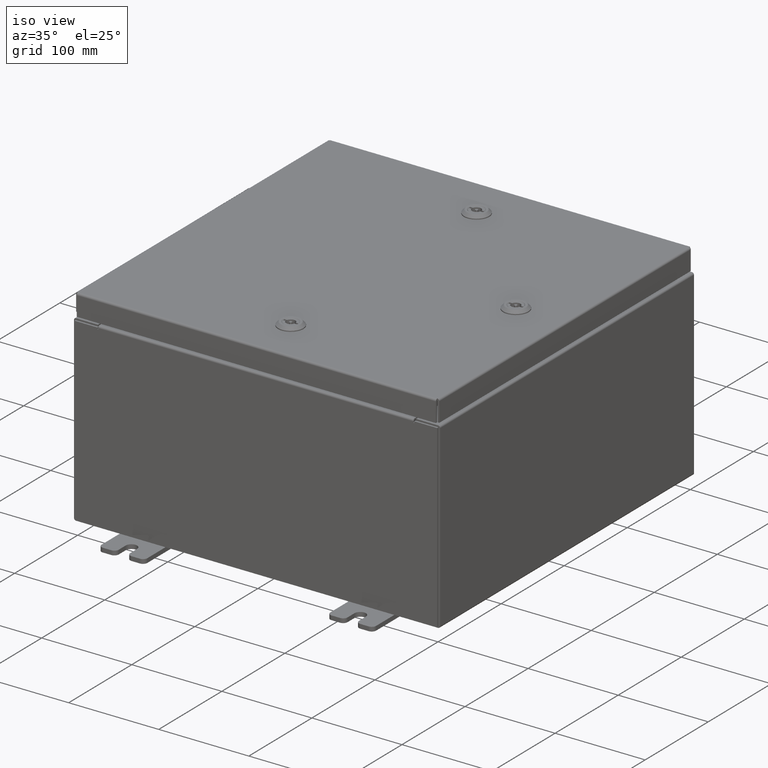
[diagram: clean part render]
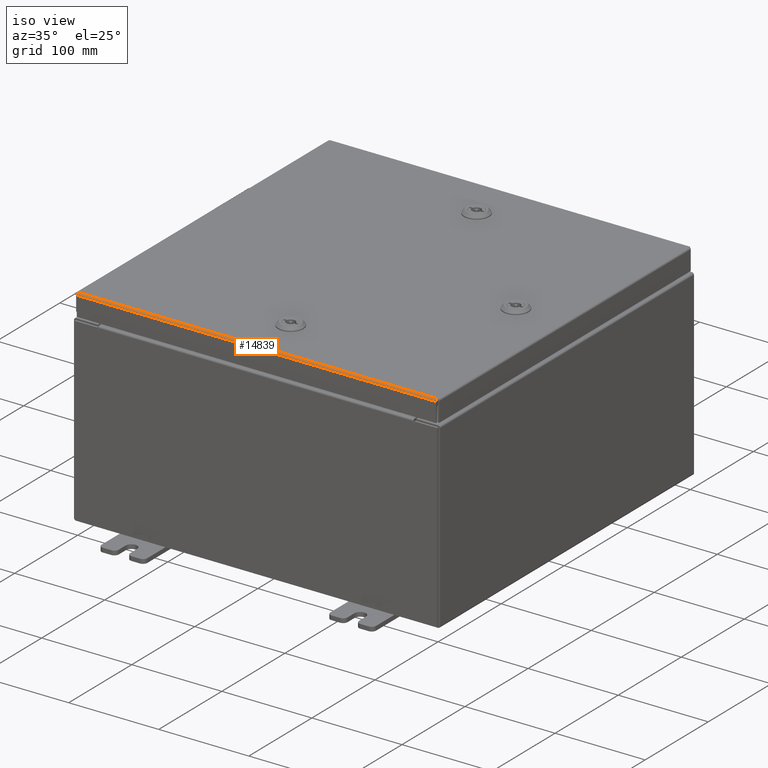
[diagram: same view with one face highlighted and labeled with its STEP entity id]
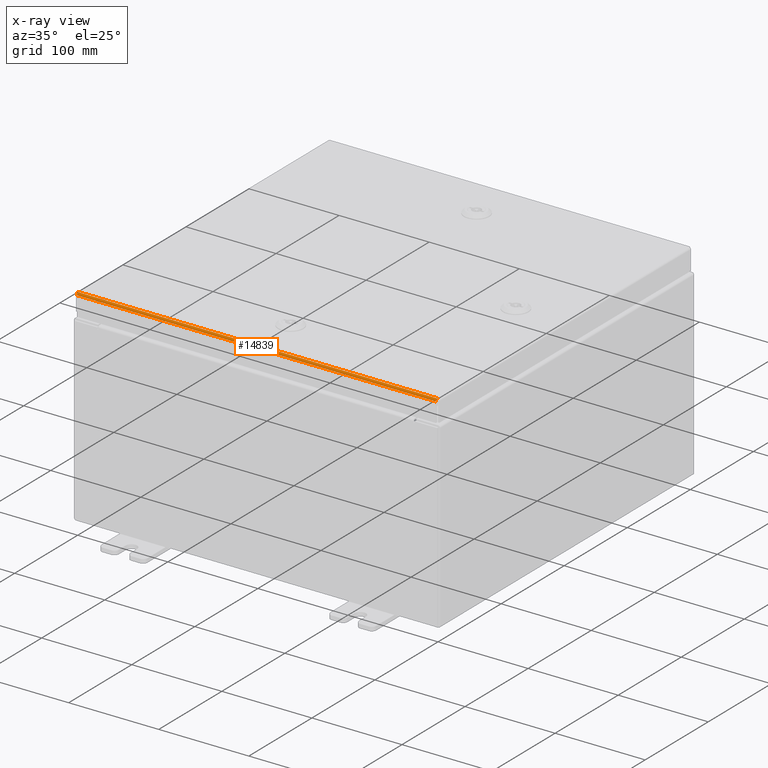
[diagram: x-ray of the same camera — body ghosted, the highlighted face saturated]
A machine part, iso view. The second image highlights one B-rep face of the part: STEP entity #14839.
The next image is the same camera in x-ray: the body ghosted, the highlighted face saturated — about 0% of this face is hidden behind the body in this view.
In plain terms, the highlighted cylindrical surface (edge-blend (fillet) strip) has radius 2.2276 mm, axis along (-1, 0, 0).
Its self-contained STEP definition (entity closure, byte-faithful):
#269 = DIRECTION ( 'NONE',  ( -1.000000000000000000, 0.0000000000000000000, 0.0000000000000000000 ) ) ;
#353 = CARTESIAN_POINT ( 'NONE',  ( 7.849704822031355900, -7.861279903154991400, -1.719743664956860300E-016 ) ) ;
#763 = CARTESIAN_POINT ( 'NONE',  ( 7.849038576250846300, -7.926431066258668800, -0.04353261542147215300 ) ) ;
#4631 = CARTESIAN_POINT ( 'NONE',  ( 7.849800000000000100, -7.849800000000000100, 0.0000000000000000000 ) ) ;
#5249 = DIRECTION ( 'NONE',  ( 1.000000000000000000, 4.575808254895093900E-031, -1.755275756154839100E-045 ) ) ;
#5600 = CARTESIAN_POINT ( 'NONE',  ( 7.848753042344914600, -7.937500000000000000, -0.07622009684500726000 ) ) ;
#6388 = ORIENTED_EDGE ( 'NONE', *, *, #33003, .T. ) ;
#6762 = ORIENTED_EDGE ( 'NONE', *, *, #59820, .F. ) ;
#12087 = CARTESIAN_POINT ( 'NONE',  ( -7.848848220313558800, -7.935217403743812300, -0.06474471054169110600 ) ) ;
#14070 = LINE ( 'NONE', #45462, #36724 ) ;
#14146 = CARTESIAN_POINT ( 'NONE',  ( -7.849800000000000100, -7.849800000000000100, 0.0000000000000000000 ) ) ;
#14839 = ADVANCED_FACE ( 'NONE', ( #17991 ), #27779, .T. ) ;
#16572 = EDGE_CURVE ( 'NONE', #20426, #29389, #14070, .T. ) ;
#16755 = CARTESIAN_POINT ( 'NONE',  ( -7.848657864376269400, -7.937500000000000000, -0.08770000000000026400 ) ) ;
#16972 = CARTESIAN_POINT ( 'NONE',  ( -7.849133754219491400, -7.919930782078321100, -0.03380425265820001500 ) ) ;
#17991 = FACE_OUTER_BOUND ( 'NONE', #19216, .T. ) ;
#19154 = AXIS2_PLACEMENT_3D ( 'NONE', #58066, #269, #19457 ) ;
#19180 = CARTESIAN_POINT ( 'NONE',  ( 7.937500000000000000, -7.937500000000000000, -0.08770000000000026400 ) ) ;
#19216 = EDGE_LOOP ( 'NONE', ( #62527, #6762, #6388, #62417 ) ) ;
#19457 = DIRECTION ( 'NONE',  ( 0.0000000000000000000, -1.000000000000000000, 3.893740013774593800E-015 ) ) ;
#20426 = VERTEX_POINT ( 'NONE', #14146 ) ;
#21805 = CARTESIAN_POINT ( 'NONE',  ( -7.849419288125424100, -7.893967384578529000, -0.01106893374133172500 ) ) ;
#24803 = CARTESIAN_POINT ( 'NONE',  ( 7.849419288125424100, -7.893967384578527200, -0.01106893374133172100 ) ) ;
#26677 = CARTESIAN_POINT ( 'NONE',  ( -7.849704822031356800, -7.861279903154993100, -1.710739771423055000E-016 ) ) ;
#27206 = CARTESIAN_POINT ( 'NONE',  ( -7.848657864376269400, -7.937500000000000000, -0.08770000000000026400 ) ) ;
#27752 = VERTEX_POINT ( 'NONE', #34675 ) ;
#27779 = CYLINDRICAL_SURFACE ( 'NONE', #19154, 0.08770000000000026400 ) ;
#28733 = VERTEX_POINT ( 'NONE', #27206 ) ;
#29389 = VERTEX_POINT ( 'NONE', #4631 ) ;
#29663 = CARTESIAN_POINT ( 'NONE',  ( 7.849133754219493200, -7.919930782078321100, -0.03380425265820001500 ) ) ;
#33003 = EDGE_CURVE ( 'NONE', #28733, #27752, #58674, .T. ) ;
#34387 = EDGE_CURVE ( 'NONE', #29389, #27752, #61611, .T. ) ;
#34493 = CARTESIAN_POINT ( 'NONE',  ( 7.848848220313557900, -7.935217403743813200, -0.06474471054169110600 ) ) ;
#34675 = CARTESIAN_POINT ( 'NONE',  ( 7.848657864376269400, -7.937500000000000000, -0.08770000000000026400 ) ) ;
#36724 = VECTOR ( 'NONE', #39528, 39.37007874015748100 ) ;
#39331 = CARTESIAN_POINT ( 'NONE',  ( 7.848657864376269400, -7.937500000000000000, -0.08770000000000026400 ) ) ;
#39528 = DIRECTION ( 'NONE',  ( 1.000000000000000000, -0.0000000000000000000, -0.0000000000000000000 ) ) ;
#42300 = B_SPLINE_CURVE_WITH_KNOTS ( 'NONE', 3,
 ( #16755, #50540, #12087, #45872, #16972, #50743, #21805, #55609, #26677, #60419 ),
 .UNSPECIFIED., .F., .F.,
 ( 4, 2, 2, 2, 4 ),
 ( 0.0000000000000000000, 0.2500000000000000000, 0.5000000000000000000, 0.7500000000000000000, 1.000000000000000000 ),
 .UNSPECIFIED. ) ;
#45462 = CARTESIAN_POINT ( 'NONE',  ( -7.849800000000000100, -7.849800000000000100, 0.0000000000000000000 ) ) ;
#45872 = CARTESIAN_POINT ( 'NONE',  ( -7.849038576250843700, -7.926431066258667900, -0.04353261542147215300 ) ) ;
#48891 = CARTESIAN_POINT ( 'NONE',  ( 7.849800000000000100, -7.849800000000000100, 0.0000000000000000000 ) ) ;
#50540 = CARTESIAN_POINT ( 'NONE',  ( -7.848753042344911000, -7.937499999999999100, -0.07622009684500721800 ) ) ;
#50743 = CARTESIAN_POINT ( 'NONE',  ( -7.849324110156779900, -7.903695747341800800, -0.01756921792167971000 ) ) ;
#53742 = CARTESIAN_POINT ( 'NONE',  ( 7.849609644062715200, -7.872755289458310400, -0.002282596256188893000 ) ) ;
#54181 = VECTOR ( 'NONE', #5249, 39.37007874015748100 ) ;
#55609 = CARTESIAN_POINT ( 'NONE',  ( -7.849609644062711700, -7.872755289458309500, -0.002282596256188894300 ) ) ;
#58066 = CARTESIAN_POINT ( 'NONE',  ( -7.849800000000000100, -7.849800000000000100, -0.08770000000000026400 ) ) ;
#58558 = CARTESIAN_POINT ( 'NONE',  ( 7.849324110156780800, -7.903695747341801700, -0.01756921792167970600 ) ) ;
#58674 = LINE ( 'NONE', #19180, #54181 ) ;
#59820 = EDGE_CURVE ( 'NONE', #28733, #20426, #42300, .T. ) ;
#60419 = CARTESIAN_POINT ( 'NONE',  ( -7.849800000000000100, -7.849800000000000100, 0.0000000000000000000 ) ) ;
#61611 = B_SPLINE_CURVE_WITH_KNOTS ( 'NONE', 3,
 ( #48891, #353, #53742, #24803, #58558, #29663, #763, #34493, #5600, #39331 ),
 .UNSPECIFIED., .F., .F.,
 ( 4, 2, 2, 2, 4 ),
 ( 0.0000000000000000000, 0.2500000000000000000, 0.5000000000000000000, 0.7500000000000000000, 1.000000000000000000 ),
 .UNSPECIFIED. ) ;
#62417 = ORIENTED_EDGE ( 'NONE', *, *, #34387, .F. ) ;
#62527 = ORIENTED_EDGE ( 'NONE', *, *, #16572, .F. ) ;